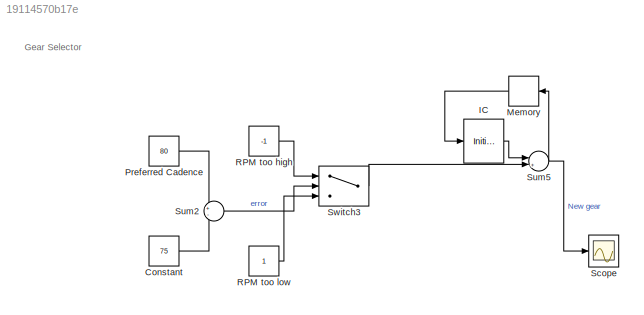
MODEL slx_19114570b17e
KIND model
CONFIG AbsTol = auto
CONFIG EnableMultiTasking = off
CONFIG FixedStep = auto
CONFIG MaxStep = auto
CONFIG MinStep = auto
CONFIG RelTol = 1e-3
CONFIG SampleTimeConstraint = Unconstrained
CONFIG Solver = VariableStepAuto
CONFIG SolverName = VariableStepAuto
CONFIG StartTime = 0.0
CONFIG StopTime = 10.0
BLOCK [Constant] Constant
  Value = 75
BLOCK [InitialCondition] IC
  Value = 16
BLOCK [Memory] Memory
BLOCK [Constant] Preferred Cadence
  Value = 80
BLOCK [Constant] RPM too high
  Value = -1
BLOCK [Constant] RPM too low
BLOCK [Scope] Scope
  Floating = off
  NumInputPorts = 1
  Ports = [1]
  ScopeSpecificationString = Simulink.scopes.TimeScopeBlockCfg('CurrentConfiguration', extmgr.ConfigurationSet(extmgr.Configuration('Core','General UI',true),extmgr.Configuration('Core','Source UI',true),extmgr.Configuration('Sources','WiredSimulink',true),extmgr.Configuration('Visuals','Time Domain',true,'SerializedDisplays',{struct('MinYLimReal','-41.25','MaxYLimReal','21.25','YLabelReal','','MinYLimMag','0.00000','MaxYLimM...<+1376ch>
BLOCK [Sum] Sum2
  Inputs = +-
  Ports = [2, 1]
BLOCK [Sum] Sum5
  Inputs = |++
  Ports = [2, 1]
BLOCK [Switch] Switch3
  Criteria = u2 > Threshold
  InputSameDT = off
  SaturateOnIntegerOverflow = off
ANNOTATION (root): Gear Selector
LINE Constant:1 -> Sum2:2
LINE IC:1 -> Sum5:1
LINE Memory:1 -> IC:1
LINE Preferred Cadence:1 -> Sum2:1
LINE RPM too high:1 -> Switch3:1
LINE RPM too low:1 -> Switch3:3
LINE Sum2:1 -> Switch3:2
NET Sum5:1 -> Memory:1, Scope:1
LINE Switch3:1 -> Sum5:2
note: NET lines group one-source signal fan-out (src -> all destinations, sorted); 1:1 wires keep LINE
